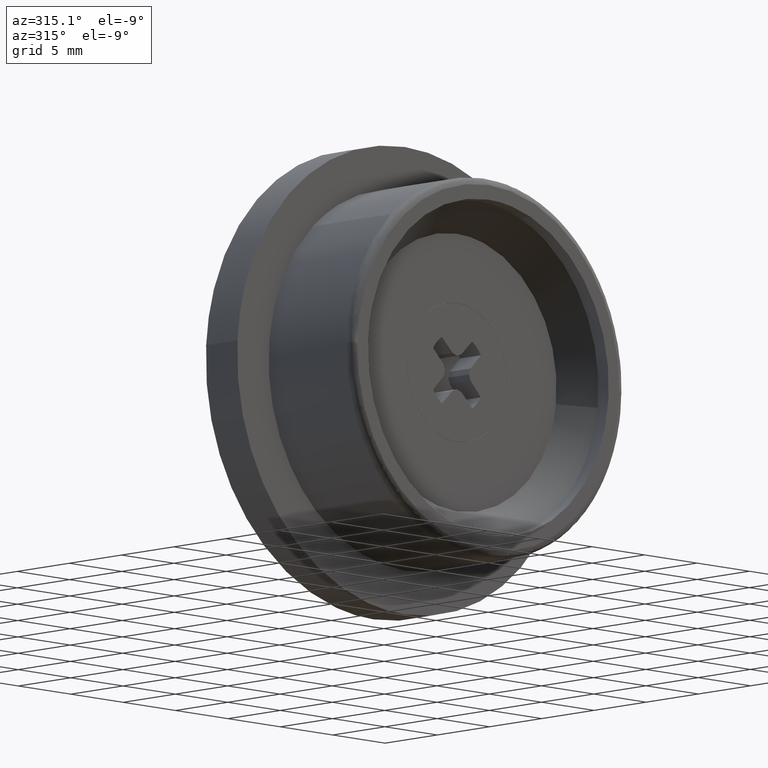
[diagram: clean part render]
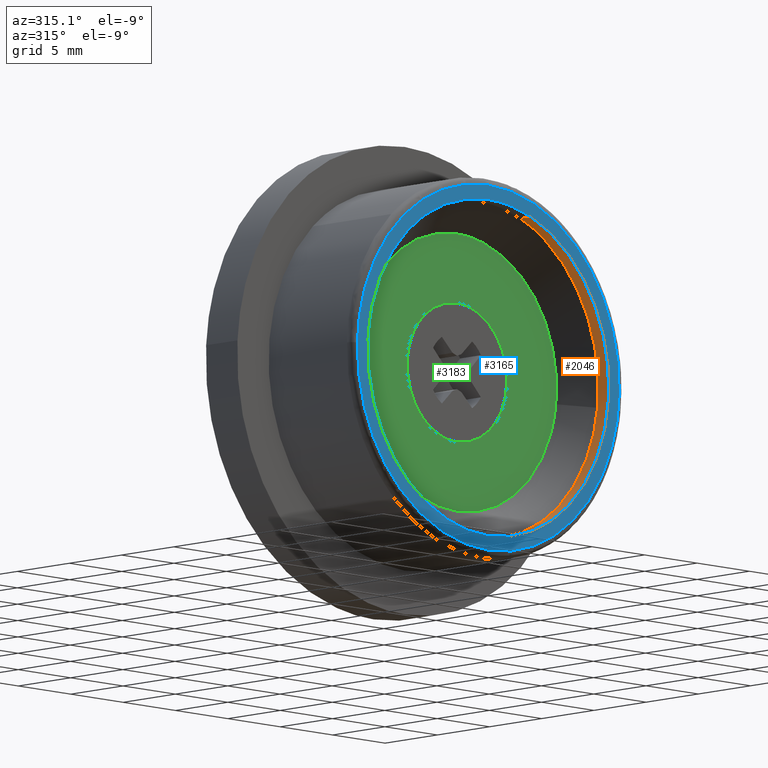
[diagram: same view with three faces highlighted in distinct colors, each labeled with its STEP entity id]
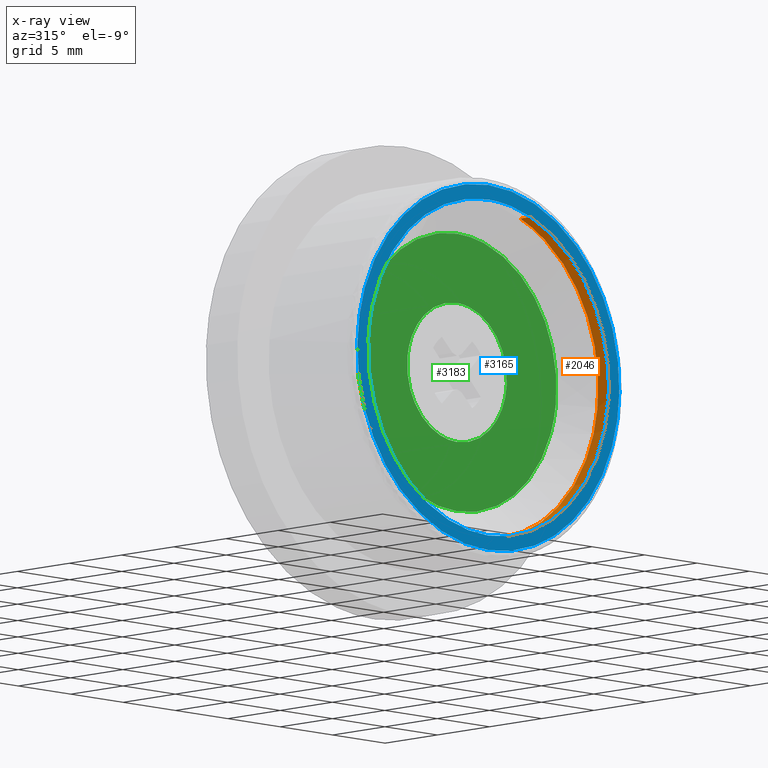
[diagram: x-ray of the same camera — body ghosted, the three highlighted faces saturated]
A machine part, auxiliary view with three faces highlighted in distinct colors.
The next image is the same camera in x-ray (body ghosted, the three faces saturated) — at least one of them is partly hidden behind the body in this view.
Their STEP definitions:

[orange] entity #2046 — the highlighted face is a freeform B-spline surface patch.
#1864=CARTESIAN_POINT('',(4.043602687159288,1.000000000000059,10.765652665230281));
#1865=VERTEX_POINT('',#1864);
#1881=CARTESIAN_POINT('',(4.043605529739581,-2.120477E-015,10.765651597551260));
#1882=VERTEX_POINT('',#1881);
#1883=CARTESIAN_POINT('',(4.043602687159288,1.000000000000059,10.765652665230281));
#1884=CARTESIAN_POINT('',(4.043605529739581,-2.120477E-015,10.765651597551260));
#1885=QUASI_UNIFORM_CURVE('',1,(#1883,#1884),.UNSPECIFIED.,.F.,.U.);
#1886=EDGE_CURVE('',#1865,#1882,#1885,.T.);
#1903=CARTESIAN_POINT('',(-11.478550884308071,-2.298285E-015,0.702046719398285));
#1904=VERTEX_POINT('',#1903);
#1918=CARTESIAN_POINT('',(-11.478550181853009,0.999999999995823,0.702058204672716));
#1919=VERTEX_POINT('',#1918);
#1920=CARTESIAN_POINT('',(-11.478550181853009,0.999999999995823,0.702058204672716));
#1921=CARTESIAN_POINT('',(-11.478550884308071,-2.298285E-015,0.702046719398285));
#1922=QUASI_UNIFORM_CURVE('',1,(#1920,#1921),.UNSPECIFIED.,.F.,.U.);
#1923=EDGE_CURVE('',#1919,#1904,#1922,.T.);
#1941=CARTESIAN_POINT('',(-11.478550181851469,1.025000000000000,0.702058204650855));
#1942=CARTESIAN_POINT('',(-12.180608386502323,1.025000000000000,-10.776491977200612));
#1943=CARTESIAN_POINT('',(-0.702058204650855,1.025000000000000,-11.478550181851469));
#1944=CARTESIAN_POINT('',(10.776491977200612,1.025000000000000,-12.180608386502323));
#1945=CARTESIAN_POINT('',(11.478550181851469,1.025000000000000,-0.702058204650855));
#1946=CARTESIAN_POINT('',(11.997228062997431,1.025000000000000,7.778250190735250));
#1947=CARTESIAN_POINT('',(4.043606705503080,1.025000000000000,10.765651155931558));
#1948=CARTESIAN_POINT('',(-11.478550181851469,-0.025625000000002,0.702058204650855));
#1949=CARTESIAN_POINT('',(-12.180608386502323,-0.025625000000002,-10.776491977200612));
#1950=CARTESIAN_POINT('',(-0.702058204650855,-0.025625000000002,-11.478550181851469));
#1951=CARTESIAN_POINT('',(10.776491977200612,-0.025625000000002,-12.180608386502323));
#1952=CARTESIAN_POINT('',(11.478550181851469,-0.025625000000002,-0.702058204650855));
#1953=CARTESIAN_POINT('',(11.997228062997431,-0.025625000000002,7.778250190735250));
#1954=CARTESIAN_POINT('',(4.043606705503080,-0.025625000000002,10.765651155931558));
#1962=(BOUNDED_SURFACE()B_SPLINE_SURFACE(2,1,((#1941,#1948),(#1942,#1949),(#1943,#1950),(#1944,#1951),(#1945,#1952),(#1946,#1953),(#1947,#1954)),.UNSPECIFIED.,.F.,.F.,.U.)B_SPLINE_SURFACE_WITH_KNOTS((3,2,2,3),(2,2),(0.0,19.053823869162368,38.107647738324737,53.350706833654627),(0.0,1.0),.UNSPECIFIED.)GEOMETRIC_REPRESENTATION_ITEM()RATIONAL_B_SPLINE_SURFACE(((1.0,1.0),(0.707106781186548,0.707106781186548),(1.0,1.0),(0.707106781186548,0.707106781186548),(1.0,1.0),(0.765685424949238,0.765685424949238),(0.906274169979695,0.906274169979695)))REPRESENTATION_ITEM('')SURFACE());
#1963=CARTESIAN_POINT('',(11.419609553182200,0.999999999999489,-1.357393698556776));
#1964=VERTEX_POINT('',#1963);
#1965=CARTESIAN_POINT('',(11.419609553182193,0.999999999999489,-1.357393698556775));
#1966=CARTESIAN_POINT('',(11.499999999999996,1.0,-0.681077376001002));
#1967=CARTESIAN_POINT('',(11.500000000000000,1.0,-1.598567E-016));
#1968=CARTESIAN_POINT('',(11.499999999999998,1.0,7.965013526267693));
#1969=CARTESIAN_POINT('',(4.043602687159288,1.000000000000059,10.765652665230276));
#1977=(BOUNDED_CURVE()B_SPLINE_CURVE(2,(#1965,#1966,#1967,#1968,#1969),.UNSPECIFIED.,.F.,.U.)B_SPLINE_CURVE_WITH_KNOTS((3,2,3),(0.229562473515526,0.250000000000000,0.440284229854649),.UNSPECIFIED.)CURVE()GEOMETRIC_REPRESENTATION_ITEM()RATIONAL_B_SPLINE_CURVE((0.956026754187654,0.976055948333509,1.0,0.777068157713732,0.893499626783629))REPRESENTATION_ITEM(''));
#1978=EDGE_CURVE('',#1964,#1865,#1977,.T.);
#1979=ORIENTED_EDGE('',*,*,#1978,.F.);
#1980=CARTESIAN_POINT('',(0.0,1.0,-11.500000000000000));
#1981=VERTEX_POINT('',#1980);
#1982=CARTESIAN_POINT('',(0.0,1.0,-11.500000000000000));
#1983=CARTESIAN_POINT('',(10.214007048433533,1.0,-11.499999999999998));
#1984=CARTESIAN_POINT('',(11.419609553182193,0.999999999999489,-1.357393698556775));
#1992=(BOUNDED_CURVE()B_SPLINE_CURVE(2,(#1982,#1983,#1984),.UNSPECIFIED.,.F.,.U.)B_SPLINE_CURVE_WITH_KNOTS((3,3),(0.0,0.229562473515526),.UNSPECIFIED.)CURVE()GEOMETRIC_REPRESENTATION_ITEM()RATIONAL_B_SPLINE_CURVE((1.0,0.731050832853039,0.956026754187654))REPRESENTATION_ITEM(''));
#1993=EDGE_CURVE('',#1981,#1964,#1992,.T.);
#1994=ORIENTED_EDGE('',*,*,#1993,.F.);
#1995=CARTESIAN_POINT('',(-11.478550181853008,0.999999999995823,0.702058204672716));
#1996=CARTESIAN_POINT('',(-11.499999999999998,1.0,0.351356777977265));
#1997=CARTESIAN_POINT('',(-11.500000000000000,1.0,-1.598567E-016));
#1998=CARTESIAN_POINT('',(-11.500000000000000,1.0,-11.500000000000000));
#1999=CARTESIAN_POINT('',(0.0,1.0,-11.500000000000000));
#2007=(BOUNDED_CURVE()B_SPLINE_CURVE(2,(#1995,#1996,#1997,#1998,#1999),.UNSPECIFIED.,.F.,.U.)B_SPLINE_CURVE_WITH_KNOTS((3,2,3),(0.739332962240664,0.750000000000000,1.0),.UNSPECIFIED.)CURVE()GEOMETRIC_REPRESENTATION_ITEM()RATIONAL_B_SPLINE_CURVE((0.976072041670407,0.987502787901854,1.0,0.707106781186548,1.0))REPRESENTATION_ITEM(''));
#2008=EDGE_CURVE('',#1919,#1981,#2007,.T.);
#2009=ORIENTED_EDGE('',*,*,#2008,.F.);
#2010=ORIENTED_EDGE('',*,*,#1923,.T.);
#2011=CARTESIAN_POINT('',(0.0,-2.112446E-015,-11.500000000000000));
#2012=VERTEX_POINT('',#2011);
#2013=CARTESIAN_POINT('',(-11.478550884308078,-2.298285E-015,0.702046719398285));
#2014=CARTESIAN_POINT('',(-11.499999999999996,-2.112446E-015,0.351351019206163));
#2015=CARTESIAN_POINT('',(-11.500000000000000,-2.112446E-015,-1.598567E-016));
#2016=CARTESIAN_POINT('',(-11.500000000000000,-2.112446E-015,-11.500000000000000));
#2017=CARTESIAN_POINT('',(0.0,-2.112446E-015,-11.500000000000000));
#2025=(BOUNDED_CURVE()B_SPLINE_CURVE(2,(#2013,#2014,#2015,#2016,#2017),.UNSPECIFIED.,.F.,.U.)B_SPLINE_CURVE_WITH_KNOTS((3,2,3),(0.739333134889531,0.750000000000000,1.0),.UNSPECIFIED.)CURVE()GEOMETRIC_REPRESENTATION_ITEM()RATIONAL_B_SPLINE_CURVE((0.976072411690073,0.987502990172584,1.0,0.707106781186548,1.0))REPRESENTATION_ITEM(''));
#2026=EDGE_CURVE('',#1904,#2012,#2025,.T.);
#2027=ORIENTED_EDGE('',*,*,#2026,.T.);
#2028=CARTESIAN_POINT('',(0.0,-2.112446E-015,-11.500000000000000));
#2029=CARTESIAN_POINT('',(11.500000000000000,-2.112446E-015,-11.500000000000000));
#2030=CARTESIAN_POINT('',(11.500000000000000,-2.112446E-015,-1.598567E-016));
#2031=CARTESIAN_POINT('',(11.499999999999998,-2.112446E-015,7.965011279716530));
#2032=CARTESIAN_POINT('',(4.043605529739581,-2.120477E-015,10.765651597551255));
#2040=(BOUNDED_CURVE()B_SPLINE_CURVE(2,(#2028,#2029,#2030,#2031,#2032),.UNSPECIFIED.,.F.,.U.)B_SPLINE_CURVE_WITH_KNOTS((3,2,3),(0.0,0.250000000000000,0.440284188149303),.UNSPECIFIED.)CURVE()GEOMETRIC_REPRESENTATION_ITEM()RATIONAL_B_SPLINE_CURVE((1.0,0.707106781186548,1.0,0.777068206574584,0.893499575746155))REPRESENTATION_ITEM(''));
#2041=EDGE_CURVE('',#2012,#1882,#2040,.T.);
#2042=ORIENTED_EDGE('',*,*,#2041,.T.);
#2043=ORIENTED_EDGE('',*,*,#1886,.F.);
#2044=EDGE_LOOP('',(#1979,#1994,#2009,#2010,#2027,#2042,#2043));
#2045=FACE_OUTER_BOUND('',#2044,.T.);
#2046=ADVANCED_FACE('',(#2045),#1962,.F.);

[blue] entity #3165 — the highlighted face is a freeform B-spline surface patch.
#1881=CARTESIAN_POINT('',(4.043605529739581,-2.120477E-015,10.765651597551260));
#1882=VERTEX_POINT('',#1881);
#1888=CARTESIAN_POINT('',(0.0,-2.112446E-015,11.500000000000000));
#1889=VERTEX_POINT('',#1888);
#1890=CARTESIAN_POINT('',(4.043605529739581,-2.120477E-015,10.765651597551255));
#1891=CARTESIAN_POINT('',(2.088484291073677,-2.112446E-015,11.500000000000000));
#1892=CARTESIAN_POINT('',(0.0,-2.112446E-015,11.500000000000000));
#1900=(BOUNDED_CURVE()B_SPLINE_CURVE(2,(#1890,#1891,#1892),.UNSPECIFIED.,.F.,.U.)B_SPLINE_CURVE_WITH_KNOTS((3,3),(0.440284188149303,0.500000000000000),.UNSPECIFIED.)CURVE()GEOMETRIC_REPRESENTATION_ITEM()RATIONAL_B_SPLINE_CURVE((0.893499575746155,0.930038574611963,1.0))REPRESENTATION_ITEM(''));
#1901=EDGE_CURVE('',#1882,#1889,#1900,.T.);
#1903=CARTESIAN_POINT('',(-11.478550884308071,-2.298285E-015,0.702046719398285));
#1904=VERTEX_POINT('',#1903);
#1905=CARTESIAN_POINT('',(0.0,-2.112446E-015,11.500000000000000));
#1906=CARTESIAN_POINT('',(-10.818130614083943,-2.112446E-015,11.499999999999998));
#1907=CARTESIAN_POINT('',(-11.478550884308078,-2.298285E-015,0.702046719398285));
#1915=(BOUNDED_CURVE()B_SPLINE_CURVE(2,(#1905,#1906,#1907),.UNSPECIFIED.,.F.,.U.)B_SPLINE_CURVE_WITH_KNOTS((3,3),(0.500000000000000,0.739333134889531),.UNSPECIFIED.)CURVE()GEOMETRIC_REPRESENTATION_ITEM()RATIONAL_B_SPLINE_CURVE((1.0,0.719603791013964,0.976072411690073))REPRESENTATION_ITEM(''));
#1916=EDGE_CURVE('',#1889,#1904,#1915,.T.);
#2011=CARTESIAN_POINT('',(0.0,-2.112446E-015,-11.500000000000000));
#2012=VERTEX_POINT('',#2011);
#2013=CARTESIAN_POINT('',(-11.478550884308078,-2.298285E-015,0.702046719398285));
#2014=CARTESIAN_POINT('',(-11.499999999999996,-2.112446E-015,0.351351019206163));
#2015=CARTESIAN_POINT('',(-11.500000000000000,-2.112446E-015,-1.598567E-016));
#2016=CARTESIAN_POINT('',(-11.500000000000000,-2.112446E-015,-11.500000000000000));
#2017=CARTESIAN_POINT('',(0.0,-2.112446E-015,-11.500000000000000));
#2025=(BOUNDED_CURVE()B_SPLINE_CURVE(2,(#2013,#2014,#2015,#2016,#2017),.UNSPECIFIED.,.F.,.U.)B_SPLINE_CURVE_WITH_KNOTS((3,2,3),(0.739333134889531,0.750000000000000,1.0),.UNSPECIFIED.)CURVE()GEOMETRIC_REPRESENTATION_ITEM()RATIONAL_B_SPLINE_CURVE((0.976072411690073,0.987502990172584,1.0,0.707106781186548,1.0))REPRESENTATION_ITEM(''));
#2026=EDGE_CURVE('',#1904,#2012,#2025,.T.);
#2028=CARTESIAN_POINT('',(0.0,-2.112446E-015,-11.500000000000000));
#2029=CARTESIAN_POINT('',(11.500000000000000,-2.112446E-015,-11.500000000000000));
#2030=CARTESIAN_POINT('',(11.500000000000000,-2.112446E-015,-1.598567E-016));
#2031=CARTESIAN_POINT('',(11.499999999999998,-2.112446E-015,7.965011279716530));
#2032=CARTESIAN_POINT('',(4.043605529739581,-2.120477E-015,10.765651597551255));
#2040=(BOUNDED_CURVE()B_SPLINE_CURVE(2,(#2028,#2029,#2030,#2031,#2032),.UNSPECIFIED.,.F.,.U.)B_SPLINE_CURVE_WITH_KNOTS((3,2,3),(0.0,0.250000000000000,0.440284188149303),.UNSPECIFIED.)CURVE()GEOMETRIC_REPRESENTATION_ITEM()RATIONAL_B_SPLINE_CURVE((1.0,0.707106781186548,1.0,0.777068206574584,0.893499575746155))REPRESENTATION_ITEM(''));
#2041=EDGE_CURVE('',#2012,#1882,#2040,.T.);
#2200=CARTESIAN_POINT('',(12.496052368122371,4.951214E-015,-0.314126193149162));
#2201=VERTEX_POINT('',#2200);
#2215=CARTESIAN_POINT('',(0.0,-2.296137E-015,-12.500000000000000));
#2216=VERTEX_POINT('',#2215);
#2217=CARTESIAN_POINT('',(0.0,-2.296137E-015,-12.500000000000000));
#2218=CARTESIAN_POINT('',(12.189723452150588,-2.296137E-015,-12.499999999999996));
#2219=CARTESIAN_POINT('',(12.496052368122376,4.951214E-015,-0.314126193149162));
#2227=(BOUNDED_CURVE()B_SPLINE_CURVE(2,(#2217,#2218,#2219),.UNSPECIFIED.,.F.,.U.)B_SPLINE_CURVE_WITH_KNOTS((3,3),(0.0,0.245579891768265),.UNSPECIFIED.)CURVE()GEOMETRIC_REPRESENTATION_ITEM()RATIONAL_B_SPLINE_CURVE((1.0,0.712285260096535,0.989826157678089))REPRESENTATION_ITEM(''));
#2228=EDGE_CURVE('',#2216,#2201,#2227,.T.);
#2230=CARTESIAN_POINT('',(-12.496052368122371,4.959024E-015,0.314126193149165));
#2231=VERTEX_POINT('',#2230);
#2232=CARTESIAN_POINT('',(-12.496052368122376,4.959024E-015,0.314126193149165));
#2233=CARTESIAN_POINT('',(-12.500000000000002,-2.296137E-015,0.157087901597367));
#2234=CARTESIAN_POINT('',(-12.500000000000000,-2.296137E-015,-1.598567E-016));
#2235=CARTESIAN_POINT('',(-12.499999999999998,-2.296137E-015,-12.499999999999998));
#2236=CARTESIAN_POINT('',(0.0,-2.296137E-015,-12.500000000000000));
#2244=(BOUNDED_CURVE()B_SPLINE_CURVE(2,(#2232,#2233,#2234,#2235,#2236),.UNSPECIFIED.,.F.,.U.)B_SPLINE_CURVE_WITH_KNOTS((3,2,3),(0.745579891768265,0.750000000000000,1.0),.UNSPECIFIED.)CURVE()GEOMETRIC_REPRESENTATION_ITEM()RATIONAL_B_SPLINE_CURVE((0.989826157678089,0.994821521090013,1.0,0.707106781186547,1.0))REPRESENTATION_ITEM(''));
#2245=EDGE_CURVE('',#2231,#2216,#2244,.T.);
#2289=CARTESIAN_POINT('',(0.0,-2.296137E-015,12.500000000000000));
#2290=VERTEX_POINT('',#2289);
#2291=CARTESIAN_POINT('',(0.0,-2.296137E-015,12.500000000000000));
#2292=CARTESIAN_POINT('',(-12.189723452150542,-2.296137E-015,12.499999999999998));
#2293=CARTESIAN_POINT('',(-12.496052368122372,4.959024E-015,0.314126193149165));
#2301=(BOUNDED_CURVE()B_SPLINE_CURVE(2,(#2291,#2292,#2293),.UNSPECIFIED.,.F.,.U.)B_SPLINE_CURVE_WITH_KNOTS((3,3),(0.500000000000000,0.745579891768264),.UNSPECIFIED.)CURVE()GEOMETRIC_REPRESENTATION_ITEM()RATIONAL_B_SPLINE_CURVE((1.0,0.712285260096536,0.989826157678087))REPRESENTATION_ITEM(''));
#2302=EDGE_CURVE('',#2290,#2231,#2301,.T.);
#2304=CARTESIAN_POINT('',(12.496052368122374,4.951214E-015,-0.314126193149162));
#2305=CARTESIAN_POINT('',(12.500000000000000,-2.296137E-015,-0.157087901597365));
#2306=CARTESIAN_POINT('',(12.500000000000000,-2.296137E-015,-1.598567E-016));
#2307=CARTESIAN_POINT('',(12.499999999999998,-2.296137E-015,12.499999999999998));
#2308=CARTESIAN_POINT('',(0.0,-2.296137E-015,12.500000000000000));
#2316=(BOUNDED_CURVE()B_SPLINE_CURVE(2,(#2304,#2305,#2306,#2307,#2308),.UNSPECIFIED.,.F.,.U.)B_SPLINE_CURVE_WITH_KNOTS((3,2,3),(0.245579891768265,0.250000000000000,0.500000000000000),.UNSPECIFIED.)CURVE()GEOMETRIC_REPRESENTATION_ITEM()RATIONAL_B_SPLINE_CURVE((0.989826157678089,0.994821521090013,1.0,0.707106781186547,1.0))REPRESENTATION_ITEM(''));
#2317=EDGE_CURVE('',#2201,#2290,#2316,.T.);
#3148=CARTESIAN_POINT('',(-13.744408420474249,-2.204291E-015,13.748749951545150));
#3149=CARTESIAN_POINT('',(-13.744408420474249,-2.204291E-015,-13.748750622097401));
#3150=CARTESIAN_POINT('',(13.744408643921080,-2.204291E-015,13.748749951545150));
#3151=CARTESIAN_POINT('',(13.744408643921080,-2.204291E-015,-13.748750622097401));
#3152=B_SPLINE_SURFACE_WITH_KNOTS('',1,1,((#3148,#3150),(#3149,#3151)),.UNSPECIFIED.,.F.,.F.,.U.,(2,2),(2,2),(0.0,27.497500573642551),(0.0,27.488817064395320),.UNSPECIFIED.);
#3153=ORIENTED_EDGE('',*,*,#2228,.T.);
#3154=ORIENTED_EDGE('',*,*,#2317,.T.);
#3155=ORIENTED_EDGE('',*,*,#2302,.T.);
#3156=ORIENTED_EDGE('',*,*,#2245,.T.);
#3157=EDGE_LOOP('',(#3153,#3154,#3155,#3156));
#3158=FACE_OUTER_BOUND('',#3157,.T.);
#3159=ORIENTED_EDGE('',*,*,#1916,.F.);
#3160=ORIENTED_EDGE('',*,*,#1901,.F.);
#3161=ORIENTED_EDGE('',*,*,#2041,.F.);
#3162=ORIENTED_EDGE('',*,*,#2026,.F.);
#3163=EDGE_LOOP('',(#3159,#3160,#3161,#3162));
#3164=FACE_BOUND('',#3163,.T.);
#3165=ADVANCED_FACE('',(#3158,#3164),#3152,.T.);

[green] entity #3183 — the highlighted face is a freeform B-spline surface patch.
#1109=CARTESIAN_POINT('',(-4.726725345488636,3.0,0.561842956986501));
#1110=VERTEX_POINT('',#1109);
#1116=CARTESIAN_POINT('',(0.0,3.0,-4.760000000000001));
#1117=VERTEX_POINT('',#1116);
#1118=CARTESIAN_POINT('',(-4.726725345488636,3.000000000000000,0.561842956986501));
#1119=CARTESIAN_POINT('',(-4.760000000000002,3.000000000000001,0.281906809563638));
#1120=CARTESIAN_POINT('',(-4.760000000000001,3.0,0.0));
#1121=CARTESIAN_POINT('',(-4.760000000000001,3.0,-4.760000000000001));
#1122=CARTESIAN_POINT('',(0.0,3.0,-4.760000000000001));
#1130=(BOUNDED_CURVE()B_SPLINE_CURVE(2,(#1118,#1119,#1120,#1121,#1122),.UNSPECIFIED.,.F.,.U.)B_SPLINE_CURVE_WITH_KNOTS((3,2,3),(0.229562473514190,0.250000000000000,0.500000000000000),.UNSPECIFIED.)CURVE()GEOMETRIC_REPRESENTATION_ITEM()RATIONAL_B_SPLINE_CURVE((0.956026754185036,0.976055948331944,1.0,0.707106781186548,1.0))REPRESENTATION_ITEM(''));
#1131=EDGE_CURVE('',#1110,#1117,#1130,.T.);
#1133=CARTESIAN_POINT('',(4.751121882250875,3.0,-0.290587095345302));
#1134=VERTEX_POINT('',#1133);
#1135=CARTESIAN_POINT('',(0.0,3.0,-4.760000000000001));
#1136=CARTESIAN_POINT('',(4.477764610843794,3.000000000000001,-4.760000000000001));
#1137=CARTESIAN_POINT('',(4.751121882250875,3.000000000000000,-0.290587095345302));
#1145=(BOUNDED_CURVE()B_SPLINE_CURVE(2,(#1135,#1136,#1137),.UNSPECIFIED.,.F.,.U.)B_SPLINE_CURVE_WITH_KNOTS((3,3),(0.500000000000000,0.739333105797550),.UNSPECIFIED.)CURVE()GEOMETRIC_REPRESENTATION_ITEM()RATIONAL_B_SPLINE_CURVE((1.0,0.719603825097340,0.976072349340334))REPRESENTATION_ITEM(''));
#1146=EDGE_CURVE('',#1117,#1134,#1145,.T.);
#1220=CARTESIAN_POINT('',(0.0,3.0,4.760000000000001));
#1221=VERTEX_POINT('',#1220);
#1222=CARTESIAN_POINT('',(4.751121882250875,3.000000000000000,-0.290587095345302));
#1223=CARTESIAN_POINT('',(4.760000000000001,3.000000000000000,-0.145429171339410));
#1224=CARTESIAN_POINT('',(4.760000000000001,3.0,0.0));
#1225=CARTESIAN_POINT('',(4.760000000000001,3.0,4.760000000000001));
#1226=CARTESIAN_POINT('',(0.0,3.0,4.760000000000001));
#1234=(BOUNDED_CURVE()B_SPLINE_CURVE(2,(#1222,#1223,#1224,#1225,#1226),.UNSPECIFIED.,.F.,.U.)B_SPLINE_CURVE_WITH_KNOTS((3,2,3),(0.739333105797550,0.750000000000000,1.0),.UNSPECIFIED.)CURVE()GEOMETRIC_REPRESENTATION_ITEM()RATIONAL_B_SPLINE_CURVE((0.976072349340334,0.987502956089208,1.0,0.707106781186548,1.0))REPRESENTATION_ITEM(''));
#1235=EDGE_CURVE('',#1134,#1221,#1234,.T.);
#1237=CARTESIAN_POINT('',(0.0,3.0,4.760000000000001));
#1238=CARTESIAN_POINT('',(-4.227710743491886,3.000000000000000,4.760000000000000));
#1239=CARTESIAN_POINT('',(-4.726725345488636,3.000000000000000,0.561842956986501));
#1247=(BOUNDED_CURVE()B_SPLINE_CURVE(2,(#1237,#1238,#1239),.UNSPECIFIED.,.F.,.U.)B_SPLINE_CURVE_WITH_KNOTS((3,3),(0.0,0.229562473514190),.UNSPECIFIED.)CURVE()GEOMETRIC_REPRESENTATION_ITEM()RATIONAL_B_SPLINE_CURVE((1.0,0.731050832854603,0.956026754185036))REPRESENTATION_ITEM(''));
#1248=EDGE_CURVE('',#1221,#1110,#1247,.T.);
#2072=CARTESIAN_POINT('',(-9.482280585010937,2.999999999994046,0.579961125626330));
#2073=VERTEX_POINT('',#2072);
#2079=CARTESIAN_POINT('',(0.0,3.0,9.500000000000000));
#2080=VERTEX_POINT('',#2079);
#2081=CARTESIAN_POINT('',(0.0,3.0,9.500000000000000));
#2082=CARTESIAN_POINT('',(-8.936707635519468,3.0,9.499999999999998));
#2083=CARTESIAN_POINT('',(-9.482280585010937,2.999999999994046,0.579961125626330));
#2091=(BOUNDED_CURVE()B_SPLINE_CURVE(2,(#2081,#2082,#2083),.UNSPECIFIED.,.F.,.U.)B_SPLINE_CURVE_WITH_KNOTS((3,3),(0.500000000000000,0.739332962240337),.UNSPECIFIED.)CURVE()GEOMETRIC_REPRESENTATION_ITEM()RATIONAL_B_SPLINE_CURVE((1.0,0.719603993285077,0.976072041669706))REPRESENTATION_ITEM(''));
#2092=EDGE_CURVE('',#2080,#2073,#2091,.T.);
#2094=CARTESIAN_POINT('',(9.433590500455246,2.999999999993787,-1.121325229288341));
#2095=VERTEX_POINT('',#2094);
#2096=CARTESIAN_POINT('',(9.433590500455246,2.999999999993788,-1.121325229288341));
#2097=CARTESIAN_POINT('',(9.500000000000002,3.000000000000000,-0.562629136742060));
#2098=CARTESIAN_POINT('',(9.500000000000000,3.0,-1.598567E-016));
#2099=CARTESIAN_POINT('',(9.500000000000000,3.0,9.500000000000000));
#2100=CARTESIAN_POINT('',(0.0,3.0,9.500000000000000));
#2108=(BOUNDED_CURVE()B_SPLINE_CURVE(2,(#2096,#2097,#2098,#2099,#2100),.UNSPECIFIED.,.F.,.U.)B_SPLINE_CURVE_WITH_KNOTS((3,2,3),(0.229562473513910,0.250000000000000,0.500000000000000),.UNSPECIFIED.)CURVE()GEOMETRIC_REPRESENTATION_ITEM()RATIONAL_B_SPLINE_CURVE((0.956026754184486,0.976055948331616,1.0,0.707106781186548,1.0))REPRESENTATION_ITEM(''));
#2109=EDGE_CURVE('',#2095,#2080,#2108,.T.);
#2139=CARTESIAN_POINT('',(0.0,3.0,-9.500000000000000));
#2140=VERTEX_POINT('',#2139);
#2141=CARTESIAN_POINT('',(0.0,3.0,-9.500000000000000));
#2142=CARTESIAN_POINT('',(8.437657996450799,3.000000000000000,-9.499999999999998));
#2143=CARTESIAN_POINT('',(9.433590500455246,2.999999999993788,-1.121325229288341));
#2151=(BOUNDED_CURVE()B_SPLINE_CURVE(2,(#2141,#2142,#2143),.UNSPECIFIED.,.F.,.U.)B_SPLINE_CURVE_WITH_KNOTS((3,3),(0.0,0.229562473513910),.UNSPECIFIED.)CURVE()GEOMETRIC_REPRESENTATION_ITEM()RATIONAL_B_SPLINE_CURVE((1.0,0.731050832854932,0.956026754184487))REPRESENTATION_ITEM(''));
#2152=EDGE_CURVE('',#2140,#2095,#2151,.T.);
#2154=CARTESIAN_POINT('',(-9.482280585010937,2.999999999994046,0.579961125626330));
#2155=CARTESIAN_POINT('',(-9.500000000000000,3.000000000000000,0.290251251381545));
#2156=CARTESIAN_POINT('',(-9.500000000000000,3.0,-1.598567E-016));
#2157=CARTESIAN_POINT('',(-9.500000000000000,3.0,-9.500000000000000));
#2158=CARTESIAN_POINT('',(0.0,3.0,-9.500000000000000));
#2166=(BOUNDED_CURVE()B_SPLINE_CURVE(2,(#2154,#2155,#2156,#2157,#2158),.UNSPECIFIED.,.F.,.U.)B_SPLINE_CURVE_WITH_KNOTS((3,2,3),(0.739332962240337,0.750000000000000,1.0),.UNSPECIFIED.)CURVE()GEOMETRIC_REPRESENTATION_ITEM()RATIONAL_B_SPLINE_CURVE((0.976072041669706,0.987502787901471,1.0,0.707106781186548,1.0))REPRESENTATION_ITEM(''));
#2167=EDGE_CURVE('',#2073,#2140,#2166,.T.);
#3166=CARTESIAN_POINT('',(-10.448818919976789,3.0,10.449049963174311));
#3167=CARTESIAN_POINT('',(-10.448818919976789,3.0,-10.449050472794029));
#3168=CARTESIAN_POINT('',(10.448877186497290,3.0,10.449049963174311));
#3169=CARTESIAN_POINT('',(10.448877186497290,3.0,-10.449050472794029));
#3170=B_SPLINE_SURFACE_WITH_KNOTS('',1,1,((#3166,#3168),(#3167,#3169)),.UNSPECIFIED.,.F.,.F.,.U.,(2,2),(2,2),(0.0,20.898100435968342),(0.0,20.897696106474079),.UNSPECIFIED.);
#3171=ORIENTED_EDGE('',*,*,#2152,.T.);
#3172=ORIENTED_EDGE('',*,*,#2109,.T.);
#3173=ORIENTED_EDGE('',*,*,#2092,.T.);
#3174=ORIENTED_EDGE('',*,*,#2167,.T.);
#3175=EDGE_LOOP('',(#3171,#3172,#3173,#3174));
#3176=FACE_OUTER_BOUND('',#3175,.T.);
#3177=ORIENTED_EDGE('',*,*,#1146,.F.);
#3178=ORIENTED_EDGE('',*,*,#1131,.F.);
#3179=ORIENTED_EDGE('',*,*,#1248,.F.);
#3180=ORIENTED_EDGE('',*,*,#1235,.F.);
#3181=EDGE_LOOP('',(#3177,#3178,#3179,#3180));
#3182=FACE_BOUND('',#3181,.T.);
#3183=ADVANCED_FACE('',(#3176,#3182),#3170,.T.);